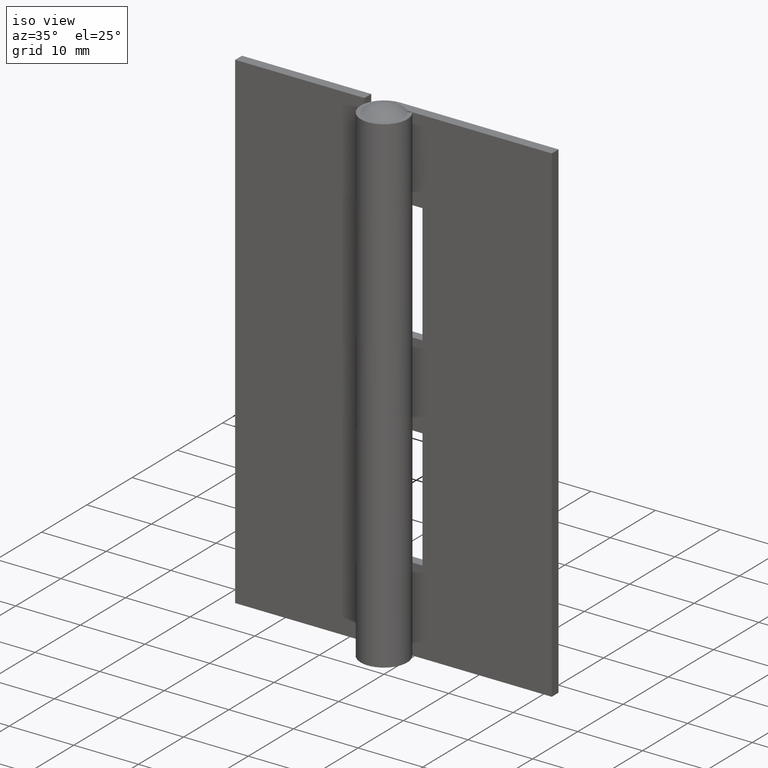
[diagram: clean part render]
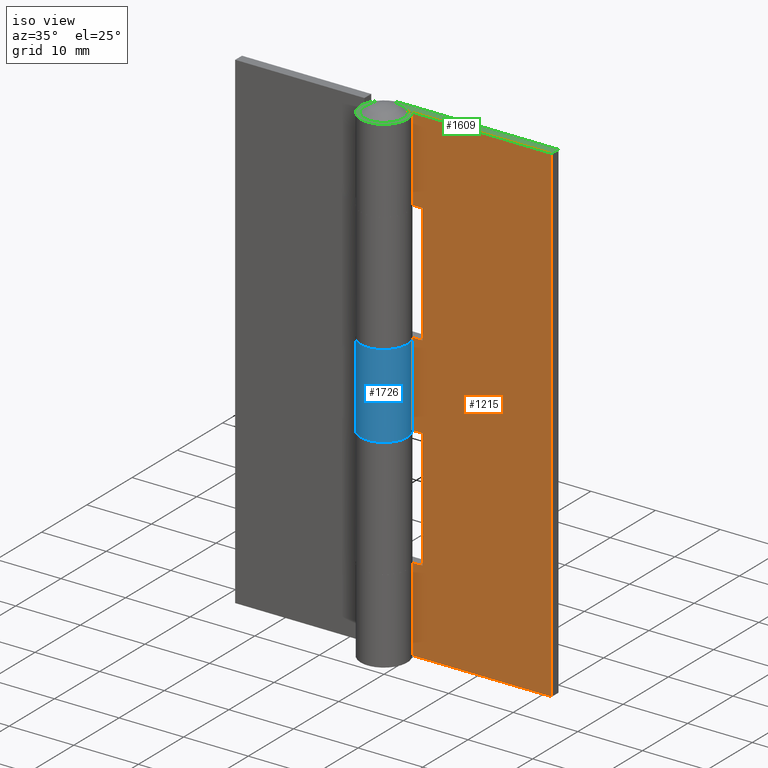
[diagram: same view with three faces highlighted in distinct colors, each labeled with its STEP entity id]
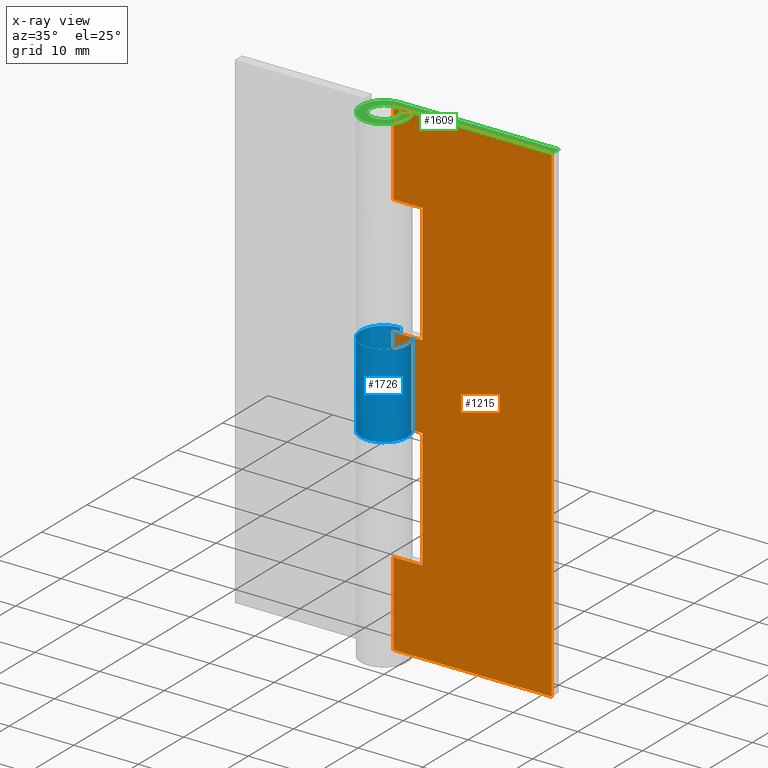
[diagram: x-ray of the same camera — body ghosted, the three highlighted faces saturated]
A machine part, iso view with three faces highlighted in distinct colors.
The next image is the same camera in x-ray (body ghosted, the three faces saturated) — at least one of them is partly hidden behind the body in this view.
Their STEP definitions:

[orange] entity #1215 — the highlighted face is a freeform B-spline surface patch.
#829=CARTESIAN_POINT('',(-0.002898274680154,2.099997999999970,13.0));
#830=VERTEX_POINT('',#829);
#861=CARTESIAN_POINT('',(-0.002898274680154,2.099997999999970,0.0));
#862=VERTEX_POINT('',#861);
#890=CARTESIAN_POINT('',(-0.002898274680154,2.099997999999970,13.0));
#891=CARTESIAN_POINT('',(-0.002898274680154,2.099997999999970,0.0));
#892=QUASI_UNIFORM_CURVE('',1,(#890,#891),.UNSPECIFIED.,.F.,.U.);
#893=EDGE_CURVE('',#830,#862,#892,.T.);
#992=CARTESIAN_POINT('',(-0.002898274680154,2.099997999999970,63.000008000000093));
#993=VERTEX_POINT('',#992);
#1021=CARTESIAN_POINT('',(-0.002898274680154,2.099997999999970,76.000008000000093));
#1022=VERTEX_POINT('',#1021);
#1023=CARTESIAN_POINT('',(-0.002898274680154,2.099997999999970,76.000008000000093));
#1024=CARTESIAN_POINT('',(-0.002898274680154,2.099997999999970,63.000008000000093));
#1025=QUASI_UNIFORM_CURVE('',1,(#1023,#1024),.UNSPECIFIED.,.F.,.U.);
#1026=EDGE_CURVE('',#1022,#993,#1025,.T.);
#1081=CARTESIAN_POINT('',(-0.002898274680154,2.099997999999970,44.500000000000000));
#1082=VERTEX_POINT('',#1081);
#1111=CARTESIAN_POINT('',(-0.002898274680154,2.099997999999970,31.500000000000000));
#1112=VERTEX_POINT('',#1111);
#1140=CARTESIAN_POINT('',(-0.002898274680154,2.099997999999970,44.500000000000000));
#1141=CARTESIAN_POINT('',(-0.002898274680154,2.099997999999970,31.500000000000000));
#1142=QUASI_UNIFORM_CURVE('',1,(#1140,#1141),.UNSPECIFIED.,.F.,.U.);
#1143=EDGE_CURVE('',#1082,#1112,#1142,.T.);
#1148=CARTESIAN_POINT('',(-1.226817996009052,2.099997999999970,79.796208252297319));
#1149=CARTESIAN_POINT('',(-1.226817996009052,2.099997999999970,-3.796202290776310));
#1150=CARTESIAN_POINT('',(25.723920378547849,2.099997999999970,79.796208252297319));
#1151=CARTESIAN_POINT('',(25.723920378547849,2.099997999999970,-3.796202290776310));
#1152=B_SPLINE_SURFACE_WITH_KNOTS('',1,1,((#1148,#1150),(#1149,#1151)),.UNSPECIFIED.,.F.,.F.,.U.,(2,2),(2,2),(0.0,83.592410543073626),(0.0,26.950738374556899),.UNSPECIFIED.);
#1153=CARTESIAN_POINT('',(4.500000000000000,2.099997999999935,63.000007999999987));
#1154=VERTEX_POINT('',#1153);
#1155=CARTESIAN_POINT('',(4.500000000000000,2.099997999999935,44.500000000000000));
#1156=VERTEX_POINT('',#1155);
#1157=CARTESIAN_POINT('',(4.500000000000000,2.099997999999935,63.000007999999987));
#1158=CARTESIAN_POINT('',(4.500000000000000,2.099997999999935,44.500000000000000));
#1159=QUASI_UNIFORM_CURVE('',1,(#1157,#1158),.UNSPECIFIED.,.F.,.U.);
#1160=EDGE_CURVE('',#1154,#1156,#1159,.T.);
#1161=ORIENTED_EDGE('',*,*,#1160,.T.);
#1162=CARTESIAN_POINT('',(4.500000000000000,2.099997999999935,44.500000000000000));
#1163=CARTESIAN_POINT('',(-0.002898274680154,2.099997999999970,44.500000000000000));
#1164=QUASI_UNIFORM_CURVE('',1,(#1162,#1163),.UNSPECIFIED.,.F.,.U.);
#1165=EDGE_CURVE('',#1156,#1082,#1164,.T.);
#1166=ORIENTED_EDGE('',*,*,#1165,.T.);
#1167=ORIENTED_EDGE('',*,*,#1143,.T.);
#1168=CARTESIAN_POINT('',(4.500000000000000,2.099997999999935,31.500000000000000));
#1169=VERTEX_POINT('',#1168);
#1170=CARTESIAN_POINT('',(-0.002898274680154,2.099997999999970,31.500000000000000));
#1171=CARTESIAN_POINT('',(4.500000000000000,2.099997999999935,31.500000000000000));
#1172=QUASI_UNIFORM_CURVE('',1,(#1170,#1171),.UNSPECIFIED.,.F.,.U.);
#1173=EDGE_CURVE('',#1112,#1169,#1172,.T.);
#1174=ORIENTED_EDGE('',*,*,#1173,.T.);
#1175=CARTESIAN_POINT('',(4.500000000000000,2.099997999999935,13.0));
#1176=VERTEX_POINT('',#1175);
#1177=CARTESIAN_POINT('',(4.500000000000000,2.099997999999935,31.500000000000000));
#1178=CARTESIAN_POINT('',(4.500000000000000,2.099997999999935,13.0));
#1179=QUASI_UNIFORM_CURVE('',1,(#1177,#1178),.UNSPECIFIED.,.F.,.U.);
#1180=EDGE_CURVE('',#1169,#1176,#1179,.T.);
#1181=ORIENTED_EDGE('',*,*,#1180,.T.);
#1182=CARTESIAN_POINT('',(4.500000000000000,2.099997999999935,13.0));
#1183=CARTESIAN_POINT('',(-0.002898274680154,2.099997999999970,13.0));
#1184=QUASI_UNIFORM_CURVE('',1,(#1182,#1183),.UNSPECIFIED.,.F.,.U.);
#1185=EDGE_CURVE('',#1176,#830,#1184,.T.);
#1186=ORIENTED_EDGE('',*,*,#1185,.T.);
#1187=ORIENTED_EDGE('',*,*,#893,.T.);
#1188=CARTESIAN_POINT('',(24.500000000000000,2.099997999999970,0.0));
#1189=VERTEX_POINT('',#1188);
#1190=CARTESIAN_POINT('',(24.500000000000000,2.099997999999970,0.0));
#1191=CARTESIAN_POINT('',(-0.002898274680154,2.099997999999970,0.0));
#1192=QUASI_UNIFORM_CURVE('',1,(#1190,#1191),.UNSPECIFIED.,.F.,.U.);
#1193=EDGE_CURVE('',#1189,#862,#1192,.T.);
#1194=ORIENTED_EDGE('',*,*,#1193,.F.);
#1195=CARTESIAN_POINT('',(24.500000000000000,2.099997999999970,76.000008000000093));
#1196=VERTEX_POINT('',#1195);
#1197=CARTESIAN_POINT('',(24.500000000000000,2.099997999999970,76.000008000000093));
#1198=CARTESIAN_POINT('',(24.500000000000000,2.099997999999970,0.0));
#1199=QUASI_UNIFORM_CURVE('',1,(#1197,#1198),.UNSPECIFIED.,.F.,.U.);
#1200=EDGE_CURVE('',#1196,#1189,#1199,.T.);
#1201=ORIENTED_EDGE('',*,*,#1200,.F.);
#1202=CARTESIAN_POINT('',(24.500000000000000,2.099997999999970,76.000008000000093));
#1203=CARTESIAN_POINT('',(-0.002898274680154,2.099997999999970,76.000008000000093));
#1204=QUASI_UNIFORM_CURVE('',1,(#1202,#1203),.UNSPECIFIED.,.F.,.U.);
#1205=EDGE_CURVE('',#1196,#1022,#1204,.T.);
#1206=ORIENTED_EDGE('',*,*,#1205,.T.);
#1207=ORIENTED_EDGE('',*,*,#1026,.T.);
#1208=CARTESIAN_POINT('',(-0.002898274680154,2.099997999999970,63.000008000000093));
#1209=CARTESIAN_POINT('',(4.500000000000000,2.099997999999935,63.000007999999987));
#1210=QUASI_UNIFORM_CURVE('',1,(#1208,#1209),.UNSPECIFIED.,.F.,.U.);
#1211=EDGE_CURVE('',#993,#1154,#1210,.T.);
#1212=ORIENTED_EDGE('',*,*,#1211,.T.);
#1213=EDGE_LOOP('',(#1161,#1166,#1167,#1174,#1181,#1186,#1187,#1194,#1201,#1206,#1207,#1212));
#1214=FACE_OUTER_BOUND('',#1213,.T.);
#1215=ADVANCED_FACE('',(#1214),#1152,.T.);

[blue] entity #1726 — the highlighted face is a freeform B-spline surface patch.
#948=CARTESIAN_POINT('',(2.959308736849920,2.049997999999975,44.500000000000000));
#949=VERTEX_POINT('',#948);
#955=CARTESIAN_POINT('',(2.959308736849920,2.049997999999975,31.500000000000000));
#956=VERTEX_POINT('',#955);
#957=CARTESIAN_POINT('',(2.959308736849920,2.049997999999975,44.500000000000000));
#958=CARTESIAN_POINT('',(2.959308736849920,2.049997999999975,31.500000000000000));
#959=QUASI_UNIFORM_CURVE('',1,(#957,#958),.UNSPECIFIED.,.F.,.U.);
#960=EDGE_CURVE('',#949,#956,#959,.T.);
#1302=CARTESIAN_POINT('',(0.003794732692927,3.599998000000000,44.500000000000000));
#1303=VERTEX_POINT('',#1302);
#1309=CARTESIAN_POINT('',(2.862294E-014,3.599998000000000,44.500000000000000));
#1310=VERTEX_POINT('',#1309);
#1311=CARTESIAN_POINT('',(2.862294E-014,3.599998000000000,44.500000000000000));
#1312=CARTESIAN_POINT('',(0.003794732692927,3.599998000000000,44.500000000000000));
#1313=QUASI_UNIFORM_CURVE('',1,(#1311,#1312),.UNSPECIFIED.,.F.,.U.);
#1314=EDGE_CURVE('',#1310,#1303,#1313,.T.);
#1316=CARTESIAN_POINT('',(2.959308736849920,2.049997999999975,44.500000000000000));
#1317=CARTESIAN_POINT('',(3.094185525102086,1.855340876788373,44.499999999999993));
#1318=CARTESIAN_POINT('',(3.313151029431062,1.461174063121264,44.499999999999950));
#1319=CARTESIAN_POINT('',(3.514009740791904,0.855434851224445,44.500000000000213));
#1320=CARTESIAN_POINT('',(3.615675820011631,0.200630139013443,44.499999999999773));
#1321=CARTESIAN_POINT('',(3.594591502579513,-0.438510754504949,44.500000000000412));
#1322=CARTESIAN_POINT('',(3.452705311102289,-1.072987333896660,44.499999999999353));
#1323=CARTESIAN_POINT('',(3.210906246267527,-1.676785289346804,44.500000000000057));
#1324=CARTESIAN_POINT('',(2.843767776770721,-2.245680908218516,44.500000000000718));
#1325=CARTESIAN_POINT('',(2.407987410742710,-2.694600850795249,44.499999999999559));
#1326=CARTESIAN_POINT('',(1.950571155115276,-3.042138587191396,44.500000000000412));
#1327=CARTESIAN_POINT('',(1.445178639054411,-3.317658577485565,44.499999999999787));
#1328=CARTESIAN_POINT('',(0.744955146934864,-3.551738949876329,44.500000000000128));
#1329=CARTESIAN_POINT('',(-0.017630656530217,-3.631635510681686,44.499999999999957));
#1330=CARTESIAN_POINT('',(-0.887689032401865,-3.523074736377111,44.500000000000007));
#1331=CARTESIAN_POINT('',(-1.618122318383372,-3.249969328693707,44.500000000000043));
#1332=CARTESIAN_POINT('',(-2.203771309834791,-2.865177935534094,44.499999999999957));
#1333=CARTESIAN_POINT('',(-2.629342555776108,-2.478968856276501,44.500000000000043));
#1334=CARTESIAN_POINT('',(-2.976770262160902,-2.052150980387722,44.499999999999893));
#1335=CARTESIAN_POINT('',(-3.319839092404235,-1.456172574759114,44.500000000000291));
#1336=CARTESIAN_POINT('',(-3.540882558976379,-0.788360488649869,44.499999999999559));
#1337=CARTESIAN_POINT('',(-3.620814865870252,-0.041801396604285,44.500000000000433));
#1338=CARTESIAN_POINT('',(-3.572624893392197,0.557455194490341,44.499999999998799));
#1339=CARTESIAN_POINT('',(-3.423430347255879,1.163802640976228,44.500000000000639));
#1340=CARTESIAN_POINT('',(-3.188095380130773,1.717016397013717,44.499999999999787));
#1341=CARTESIAN_POINT('',(-2.770885992722558,2.341258986382275,44.499999999999922));
#1342=CARTESIAN_POINT('',(-2.265226639473299,2.830271459027092,44.500000000000853));
#1343=CARTESIAN_POINT('',(-1.579307248531857,3.266171420887495,44.499999999996867));
#1344=CARTESIAN_POINT('',(-0.847607291564560,3.535905157212498,44.500000000008832));
#1345=CARTESIAN_POINT('',(-0.261750011277849,3.600018884096184,44.499999999988191));
#1346=CARTESIAN_POINT('',(2.862294E-014,3.599998000000000,44.500000000000000));
#1347=B_SPLINE_CURVE_WITH_KNOTS('',3,(#1316,#1317,#1318,#1319,#1320,#1321,#1322,#1323,#1324,#1325,#1326,#1327,#1328,#1329,#1330,#1331,#1332,#1333,#1334,#1335,#1336,#1337,#1338,#1339,#1340,#1341,#1342,#1343,#1344,#1345,#1346),.UNSPECIFIED.,.F.,.U.,(4,1,1,1,1,1,1,1,1,1,1,1,1,1,1,1,1,1,1,1,1,1,1,1,1,1,1,1,4),(0.000000432186496,0.710453860849807,1.346158232077244,1.907079566514408,2.692368517896036,3.253286946244671,3.851603731984101,4.636884632072352,5.272496153064067,5.721244559867607,6.356941951436248,6.992652511143353,7.927522102394441,8.638007876543387,9.610182262526894,10.245891736741990,10.732015990187520,11.330345300115351,11.891255096324141,12.788727685979641,13.424425076466820,14.134934372298900,14.583569667972050,15.294078961803971,15.929776353911601,16.827248944206879,17.388158739806929,18.360402486804620,19.145669221567289),.UNSPECIFIED.);
#1348=EDGE_CURVE('',#949,#1310,#1347,.T.);
#1363=CARTESIAN_POINT('',(0.003794732692927,3.599998000000000,31.500000000000000));
#1364=VERTEX_POINT('',#1363);
#1365=CARTESIAN_POINT('',(0.003794732692927,3.599998000000000,31.500000000000000));
#1366=CARTESIAN_POINT('',(-0.345299363559145,3.600522273457628,31.500000000000071));
#1367=CARTESIAN_POINT('',(-0.906303310869971,3.518680556853231,31.499999999999940));
#1368=CARTESIAN_POINT('',(-1.627455909562708,3.232162071699527,31.500000000000028));
#1369=CARTESIAN_POINT('',(-2.116829844293379,2.928888825809510,31.500000000000199));
#1370=CARTESIAN_POINT('',(-2.554300927149175,2.556342517189357,31.499999999999751));
#1371=CARTESIAN_POINT('',(-2.980913399342624,2.064827102186382,31.500000000000039));
#1372=CARTESIAN_POINT('',(-3.377219416351522,1.351360979765849,31.500000000000050));
#1373=CARTESIAN_POINT('',(-3.604622556113982,0.488157586915010,31.500000000000242));
#1374=CARTESIAN_POINT('',(-3.611351567519350,-0.327958667178597,31.499999999999350));
#1375=CARTESIAN_POINT('',(-3.474861198878136,-1.002681757582437,31.500000000001339));
#1376=CARTESIAN_POINT('',(-3.264654796539927,-1.551529992006217,31.499999999997389));
#1377=CARTESIAN_POINT('',(-2.909607406442306,-2.169644039660291,31.500000000000409));
#1378=CARTESIAN_POINT('',(-2.417355473717391,-2.708980535734393,31.500000000002959));
#1379=CARTESIAN_POINT('',(-1.770239256985535,-3.158913492819267,31.499999999995140));
#1380=CARTESIAN_POINT('',(-1.106666377277073,-3.455837177122656,31.500000000002739));
#1381=CARTESIAN_POINT('',(-0.356848240541997,-3.609792664643053,31.499999999998469));
#1382=CARTESIAN_POINT('',(0.307102000593740,-3.602788287820137,31.500000000001108));
#1383=CARTESIAN_POINT('',(0.897900400892766,-3.500448803477131,31.499999999997630));
#1384=CARTESIAN_POINT('',(1.444021145604143,-3.318183203145655,31.500000000006281));
#1385=CARTESIAN_POINT('',(1.971588562459302,-3.030792703211001,31.499999999989061));
#1386=CARTESIAN_POINT('',(2.445640502488933,-2.663022262085822,31.500000000007521));
#1387=CARTESIAN_POINT('',(2.872192865239461,-2.205150805923155,31.499999999995691));
#1388=CARTESIAN_POINT('',(3.199787853104616,-1.686029175400548,31.500000000001432));
#1389=CARTESIAN_POINT('',(3.436358298865576,-1.121286137841809,31.499999999999819));
#1390=CARTESIAN_POINT('',(3.603697066946370,-0.440642274414271,31.500000000000028));
#1391=CARTESIAN_POINT('',(3.616667926021185,0.301516636810454,31.500000000000000));
#1392=CARTESIAN_POINT('',(3.434613506323284,1.196481083685290,31.500000000000011));
#1393=CARTESIAN_POINT('',(3.179580753233840,1.732400653337516,31.499999999999989));
#1394=CARTESIAN_POINT('',(2.959308736849920,2.049997999999975,31.500000000000000));
#1395=B_SPLINE_CURVE_WITH_KNOTS('',3,(#1365,#1366,#1367,#1368,#1369,#1370,#1371,#1372,#1373,#1374,#1375,#1376,#1377,#1378,#1379,#1380,#1381,#1382,#1383,#1384,#1385,#1386,#1387,#1388,#1389,#1390,#1391,#1392,#1393,#1394),.UNSPECIFIED.,.F.,.U.,(4,1,1,1,1,1,1,1,1,1,1,1,1,1,1,1,1,1,1,1,1,1,1,1,1,1,1,4),(0.000000432415494,1.047227574378159,1.683051279197350,2.318881693764475,2.767706217595631,3.403530675000940,4.263777574810462,5.198741310347733,6.059003094876166,6.694827082674790,7.255853261136592,7.816874306824355,8.826743900814755,9.425169934102799,10.173129529987889,10.995966040395420,11.706601894446621,12.155427355431950,12.791264000872751,13.427087480030870,13.950725360140540,14.586461913042470,15.297112109476270,15.783332499902610,16.419164922288939,17.391607225837969,17.990055205073581,19.149466254258421),.UNSPECIFIED.);
#1396=EDGE_CURVE('',#1364,#956,#1395,.T.);
#1693=CARTESIAN_POINT('',(0.098030393887260,3.598665036075782,44.825000000000010));
#1694=CARTESIAN_POINT('',(0.098030393887260,3.598665036075782,31.166875000000001));
#1695=CARTESIAN_POINT('',(-4.426111602555396,3.721906131722923,44.825000000000010));
#1696=CARTESIAN_POINT('',(-4.426111602555396,3.721906131722923,31.166875000000005));
#1697=CARTESIAN_POINT('',(-3.528483524804169,-0.714005612852828,44.825000000000010));
#1698=CARTESIAN_POINT('',(-3.528483524804169,-0.714005612852828,31.166875000000001));
#1699=CARTESIAN_POINT('',(-2.630855447052942,-5.149917357428578,44.825000000000010));
#1700=CARTESIAN_POINT('',(-2.630855447052942,-5.149917357428578,31.166875000000005));
#1701=CARTESIAN_POINT('',(1.489441784392122,-3.277432405238419,44.825000000000010));
#1702=CARTESIAN_POINT('',(1.489441784392122,-3.277432405238419,31.166875000000001));
#1703=CARTESIAN_POINT('',(5.609739015837186,-1.404947453048260,44.825000000000010));
#1704=CARTESIAN_POINT('',(5.609739015837186,-1.404947453048260,31.166875000000005));
#1705=CARTESIAN_POINT('',(2.858380525238606,2.188529363051093,44.825000000000010));
#1706=CARTESIAN_POINT('',(2.858380525238606,2.188529363051093,31.166875000000001));
#1714=(BOUNDED_SURFACE()B_SPLINE_SURFACE(1,2,((#1693,#1695,#1697,#1699,#1701,#1703,#1705),(#1694,#1696,#1698,#1700,#1702,#1704,#1706)),.UNSPECIFIED.,.F.,.F.,.U.)B_SPLINE_SURFACE_WITH_KNOTS((2,2),(3,2,2,3),(0.0,13.658125000000011),(0.0,6.945735467773014,13.891470935546030,20.837206403319041),.UNSPECIFIED.)GEOMETRIC_REPRESENTATION_ITEM()RATIONAL_B_SPLINE_SURFACE(((1.0,0.622514636637620,1.0,0.622514636637620,1.0,0.622514636637620,1.0),(1.0,0.622514636637620,1.0,0.622514636637620,1.0,0.622514636637620,1.0)))REPRESENTATION_ITEM('')SURFACE());
#1715=ORIENTED_EDGE('',*,*,#1348,.T.);
#1716=ORIENTED_EDGE('',*,*,#1314,.T.);
#1717=CARTESIAN_POINT('',(0.003794732692927,3.599998000000000,44.500000000000000));
#1718=CARTESIAN_POINT('',(0.003794732692927,3.599998000000000,31.500000000000000));
#1719=QUASI_UNIFORM_CURVE('',1,(#1717,#1718),.UNSPECIFIED.,.F.,.U.);
#1720=EDGE_CURVE('',#1303,#1364,#1719,.T.);
#1721=ORIENTED_EDGE('',*,*,#1720,.T.);
#1722=ORIENTED_EDGE('',*,*,#1396,.T.);
#1723=ORIENTED_EDGE('',*,*,#960,.F.);
#1724=EDGE_LOOP('',(#1715,#1716,#1721,#1722,#1723));
#1725=FACE_OUTER_BOUND('',#1724,.T.);
#1726=ADVANCED_FACE('',(#1725),#1714,.T.);

[green] entity #1609 — the highlighted face is a freeform B-spline surface patch.
#903=CARTESIAN_POINT('',(2.959308736849920,2.049997999999975,76.000008000000093));
#904=VERTEX_POINT('',#903);
#919=CARTESIAN_POINT('',(1.726263429829130,1.195832166666654,76.000008000000093));
#920=VERTEX_POINT('',#919);
#926=CARTESIAN_POINT('',(1.726263429829130,1.195832166666654,76.000008000000093));
#927=CARTESIAN_POINT('',(2.959308736849920,2.049997999999975,76.000008000000093));
#928=QUASI_UNIFORM_CURVE('',1,(#926,#927),.UNSPECIFIED.,.F.,.U.);
#929=EDGE_CURVE('',#920,#904,#928,.T.);
#1021=CARTESIAN_POINT('',(-0.002898274680154,2.099997999999970,76.000008000000093));
#1022=VERTEX_POINT('',#1021);
#1028=CARTESIAN_POINT('',(1.726263429829130,1.195832166666654,76.000008000000093));
#1029=CARTESIAN_POINT('',(1.858836856104960,1.004682893112157,76.000008000000022));
#1030=CARTESIAN_POINT('',(2.053128749437093,0.591140512817141,76.000008000000165));
#1031=CARTESIAN_POINT('',(2.131030528838924,-0.066493674314702,76.000008000000207));
#1032=CARTESIAN_POINT('',(2.029080355704280,-0.615434932548324,76.000007999999937));
#1033=CARTESIAN_POINT('',(1.813658446456411,-1.094930110038854,76.000008000000278));
#1034=CARTESIAN_POINT('',(1.502667475846729,-1.503528451566401,76.000007999999781));
#1035=CARTESIAN_POINT('',(1.093903306929614,-1.814277934344786,76.000008000000662));
#1036=CARTESIAN_POINT('',(0.627572489745721,-2.023466238865571,76.000007999999582));
#1037=CARTESIAN_POINT('',(0.138027646138264,-2.119263363503661,76.000008000000946));
#1038=CARTESIAN_POINT('',(-0.359036687641469,-2.086153443947285,76.000007999999397));
#1039=CARTESIAN_POINT('',(-0.849578592420106,-1.942726337891252,76.000007999999852));
#1040=CARTESIAN_POINT('',(-1.320443042839915,-1.671118348114128,76.000007999999269));
#1041=CARTESIAN_POINT('',(-1.744092626755526,-1.222399418186867,76.000008000000491));
#1042=CARTESIAN_POINT('',(-2.008112232307215,-0.697338285089106,76.000008000000122));
#1043=CARTESIAN_POINT('',(-2.105010084994555,-0.208694119317125,76.000008000000079));
#1044=CARTESIAN_POINT('',(-2.098944628404425,0.316490904468231,76.000008000000193));
#1045=CARTESIAN_POINT('',(-1.977276723950035,0.772144333801514,76.000008000000079));
#1046=CARTESIAN_POINT('',(-1.749143222777743,1.179458482484321,76.000008000000079));
#1047=CARTESIAN_POINT('',(-1.475270798750245,1.520856175355628,76.000008000000193));
#1048=CARTESIAN_POINT('',(-1.128682610749437,1.793154936372648,76.000007999999951));
#1049=CARTESIAN_POINT('',(-0.613272802574343,2.034201075311316,76.000008000000534));
#1050=CARTESIAN_POINT('',(-0.250080692909293,2.099861681004610,76.000007999998829));
#1051=CARTESIAN_POINT('',(-0.002898274680154,2.099997999999970,76.000008000000093));
#1052=B_SPLINE_CURVE_WITH_KNOTS('',3,(#1028,#1029,#1030,#1031,#1032,#1033,#1034,#1035,#1036,#1037,#1038,#1039,#1040,#1041,#1042,#1043,#1044,#1045,#1046,#1047,#1048,#1049,#1050,#1051),.UNSPECIFIED.,.F.,.U.,(4,1,1,1,1,1,1,1,1,1,1,1,1,1,1,1,1,1,1,1,1,4),(0.000000338898650,0.697831711107657,1.352080063150529,1.962716495720486,2.355266282047051,2.922196381703316,3.489212639664108,3.881776179150482,4.448790366089576,4.972192971625079,5.364746301712782,5.975312757835724,6.585922352019173,7.196556466166042,7.719944839544130,8.068890693787571,8.766702150565404,9.115611761778446,9.464546860119812,10.075184780088920,10.424119879209940,11.165560517452940),.UNSPECIFIED.);
#1053=EDGE_CURVE('',#920,#1022,#1052,.T.);
#1195=CARTESIAN_POINT('',(24.500000000000000,2.099997999999970,76.000008000000093));
#1196=VERTEX_POINT('',#1195);
#1202=CARTESIAN_POINT('',(24.500000000000000,2.099997999999970,76.000008000000093));
#1203=CARTESIAN_POINT('',(-0.002898274680154,2.099997999999970,76.000008000000093));
#1204=QUASI_UNIFORM_CURVE('',1,(#1202,#1203),.UNSPECIFIED.,.F.,.U.);
#1205=EDGE_CURVE('',#1196,#1022,#1204,.T.);
#1553=CARTESIAN_POINT('',(-5.003589254377197,-3.959600167584541,76.000008000000093));
#1554=CARTESIAN_POINT('',(25.903595428462271,-3.959600167584541,76.000008000000093));
#1555=CARTESIAN_POINT('',(-5.003589254377197,3.959636189597817,76.000008000000093));
#1556=CARTESIAN_POINT('',(25.903595428462271,3.959636189597817,76.000008000000093));
#1557=B_SPLINE_SURFACE_WITH_KNOTS('',1,1,((#1553,#1555),(#1554,#1556)),.UNSPECIFIED.,.F.,.F.,.U.,(2,2),(2,2),(0.0,30.907184682839461),(0.0,7.919236357182358),.UNSPECIFIED.);
#1558=CARTESIAN_POINT('',(0.003794732692927,3.599998000000000,76.000008000000093));
#1559=VERTEX_POINT('',#1558);
#1560=CARTESIAN_POINT('',(24.500000000000000,3.599998000000000,76.000008000000093));
#1561=VERTEX_POINT('',#1560);
#1562=CARTESIAN_POINT('',(0.003794732692927,3.599998000000000,76.000008000000093));
#1563=CARTESIAN_POINT('',(24.500000000000000,3.599998000000000,76.000008000000093));
#1564=QUASI_UNIFORM_CURVE('',1,(#1562,#1563),.UNSPECIFIED.,.F.,.U.);
#1565=EDGE_CURVE('',#1559,#1561,#1564,.T.);
#1566=ORIENTED_EDGE('',*,*,#1565,.F.);
#1567=CARTESIAN_POINT('',(2.959308736849920,2.049997999999975,76.000008000000093));
#1568=CARTESIAN_POINT('',(3.158233843036628,1.763124737251816,76.000008000000435));
#1569=CARTESIAN_POINT('',(3.409876795016569,1.255086916889429,76.000007999999710));
#1570=CARTESIAN_POINT('',(3.572944619758963,0.547721744107074,76.000008000000022));
#1571=CARTESIAN_POINT('',(3.613593739667546,-0.025636778441845,76.000008000000136));
#1572=CARTESIAN_POINT('',(3.562754546340674,-0.661647826663857,76.000007999999994));
#1573=CARTESIAN_POINT('',(3.377251500892347,-1.313391271951633,76.000008000000250));
#1574=CARTESIAN_POINT('',(3.028490957697451,-1.992169543066625,76.000008000000960));
#1575=CARTESIAN_POINT('',(2.580018055058296,-2.549897961357909,76.000007999997010));
#1576=CARTESIAN_POINT('',(2.015549096093182,-3.006857570952728,76.000008000002836));
#1577=CARTESIAN_POINT('',(1.411048554782241,-3.336151631892652,76.000007999999198));
#1578=CARTESIAN_POINT('',(0.705987849392958,-3.559364105382197,76.000008000000193));
#1579=CARTESIAN_POINT('',(-0.006506103567664,-3.622511165731282,76.000008000000037));
#1580=CARTESIAN_POINT('',(-0.653265318688574,-3.555065702282190,76.000007999999440));
#1581=CARTESIAN_POINT('',(-1.293822440360930,-3.384969748741511,76.000008000000847));
#1582=CARTESIAN_POINT('',(-1.879706728824658,-3.096854642931991,76.000008000001600));
#1583=CARTESIAN_POINT('',(-2.437264963795241,-2.673609333225498,76.000007999998147));
#1584=CARTESIAN_POINT('',(-2.941260125393279,-2.132904513811221,76.000008000002921));
#1585=CARTESIAN_POINT('',(-3.320186225958531,-1.465537755256914,76.000007999994850));
#1586=CARTESIAN_POINT('',(-3.529576895457938,-0.783858054424726,76.000008000007483));
#1587=CARTESIAN_POINT('',(-3.628884312624003,-0.065378438364488,76.000007999987687));
#1588=CARTESIAN_POINT('',(-3.565733788958946,0.712611334215381,76.000008000006645));
#1589=CARTESIAN_POINT('',(-3.313350927635848,1.460877001995697,76.000007999999013));
#1590=CARTESIAN_POINT('',(-2.951682777436488,2.104283914517145,76.000007999999752));
#1591=CARTESIAN_POINT('',(-2.449697518906091,2.682802514039694,76.000008000000292));
#1592=CARTESIAN_POINT('',(-1.746131262322721,3.187527541933249,76.000007999999994));
#1593=CARTESIAN_POINT('',(-0.918808450553758,3.521150377864067,76.000008000000150));
#1594=CARTESIAN_POINT('',(-0.307882755536507,3.600418917321412,76.000008000000008));
#1595=CARTESIAN_POINT('',(0.003794732692927,3.599998000000000,76.000008000000093));
#1596=B_SPLINE_CURVE_WITH_KNOTS('',3,(#1567,#1568,#1569,#1570,#1571,#1572,#1573,#1574,#1575,#1576,#1577,#1578,#1579,#1580,#1581,#1582,#1583,#1584,#1585,#1586,#1587,#1588,#1589,#1590,#1591,#1592,#1593,#1594,#1595),.UNSPECIFIED.,.F.,.U.,(4,1,1,1,1,1,1,1,1,1,1,1,1,1,1,1,1,1,1,1,1,1,1,1,1,1,4),(0.000000432419402,1.047227574381793,1.683051279200733,2.169276787733221,2.767706217598548,3.590551887298794,4.188982824286683,5.049163033927947,5.722379190468161,6.358202669610819,7.106246949829615,7.929094324372882,8.490124412279119,9.051125370341000,9.911314346767462,10.434952439864800,11.145569129118989,12.118023493441450,12.716460783881690,13.277490871786540,14.287324460284250,15.035290170965110,15.633736013886400,16.493968353956369,17.316807200212040,18.214453939535819,19.149466254258421),.UNSPECIFIED.);
#1597=EDGE_CURVE('',#904,#1559,#1596,.T.);
#1598=ORIENTED_EDGE('',*,*,#1597,.F.);
#1599=ORIENTED_EDGE('',*,*,#929,.F.);
#1600=ORIENTED_EDGE('',*,*,#1053,.T.);
#1601=ORIENTED_EDGE('',*,*,#1205,.F.);
#1602=CARTESIAN_POINT('',(24.500000000000000,3.599998000000000,76.000008000000093));
#1603=CARTESIAN_POINT('',(24.500000000000000,2.099997999999970,76.000008000000093));
#1604=QUASI_UNIFORM_CURVE('',1,(#1602,#1603),.UNSPECIFIED.,.F.,.U.);
#1605=EDGE_CURVE('',#1561,#1196,#1604,.T.);
#1606=ORIENTED_EDGE('',*,*,#1605,.F.);
#1607=EDGE_LOOP('',(#1566,#1598,#1599,#1600,#1601,#1606));
#1608=FACE_OUTER_BOUND('',#1607,.T.);
#1609=ADVANCED_FACE('',(#1608),#1557,.T.);